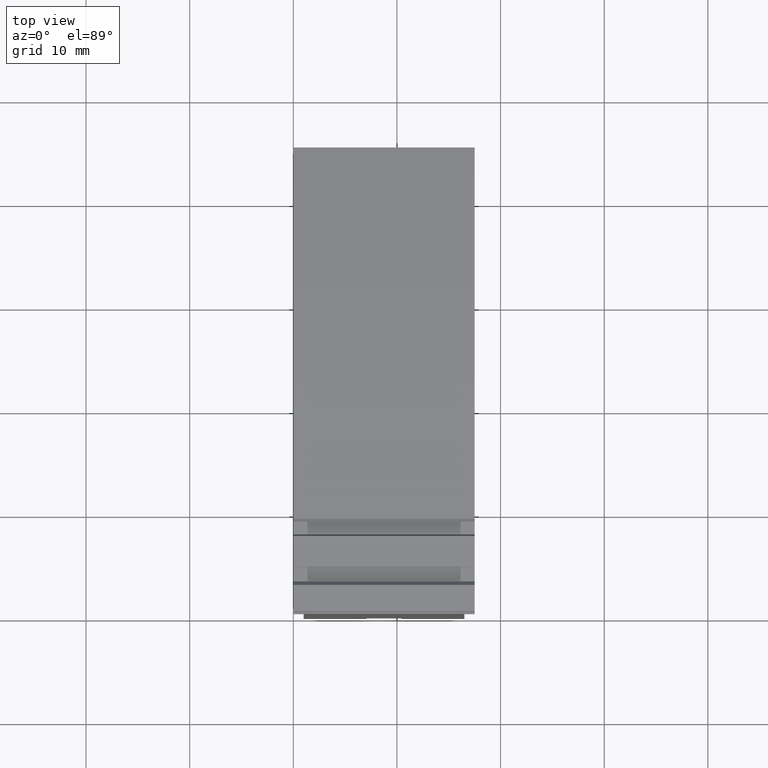
[diagram: clean part render]
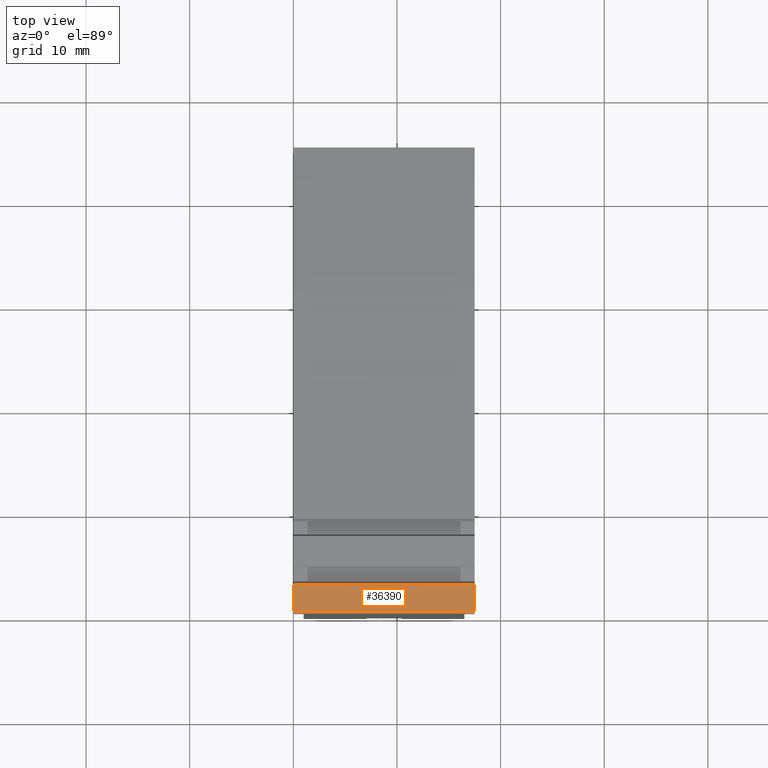
[diagram: same view with one face highlighted and labeled with its STEP entity id]
A machine part, top view. The second image highlights one B-rep face of the part: STEP entity #36390.
In plain terms, the highlighted cylindrical surface (partial cylindrical patch) has radius 200 mm, axis along (-1, 0, 0).
Its self-contained STEP definition (entity closure, byte-faithful):
#1380=CARTESIAN_POINT('',(89.1627879389476,69.0716268524715,
-65.5500000000926));
#1390=DIRECTION('',(1.22464679914735E-16,0.,-1.));
#1400=VECTOR('',#1390,1.);
#1410=LINE('',#1380,#1400);
#1420=CARTESIAN_POINT('',(89.1627879389475,69.0716268524716,
-48.0500000000926));
#1430=VERTEX_POINT('',#1420);
#1440=CARTESIAN_POINT('',(89.1627879389475,69.0716268524715,
-65.5500000000926));
#1450=VERTEX_POINT('',#1440);
#1460=EDGE_CURVE('',#1430,#1450,#1410,.T.);
#1760=CARTESIAN_POINT('',(69.3413513139148,-129.94372594756,
-48.0500000000926));
#1770=DIRECTION('',(-1.22464679914735E-16,0.,1.));
#1780=DIRECTION('',(1.,0.,1.22464679914735E-16));
#1790=AXIS2_PLACEMENT_3D('',#1760,#1770,#1780);
#1800=CIRCLE('',#1790,200.000000000003);
#1810=CARTESIAN_POINT('',(91.7413513139151,68.7979153861102,
-48.0500000000926));
#1820=VERTEX_POINT('',#1810);
#1830=EDGE_CURVE('',#1820,#1430,#1800,.T.);
#35950=CARTESIAN_POINT('',(91.7413513139151,68.7979153861102,
-65.5500000000926));
#35960=VERTEX_POINT('',#35950);
#36060=CARTESIAN_POINT('',(91.7413513139151,68.7979153861102,
-65.5500000000926));
#36070=DIRECTION('',(-1.22464679914735E-16,0.,1.));
#36080=VECTOR('',#36070,1.);
#36090=LINE('',#36060,#36080);
#36100=EDGE_CURVE('',#35960,#1820,#36090,.T.);
#36220=CARTESIAN_POINT('',(69.3413513139148,-129.94372594756,
-65.5500000000926));
#36230=DIRECTION('',(-1.22464679914735E-16,0.,1.));
#36240=DIRECTION('',(1.,0.,1.22464679914735E-16));
#36250=AXIS2_PLACEMENT_3D('',#36220,#36230,#36240);
#36260=CYLINDRICAL_SURFACE('',#36250,200.000000000003);
#36270=CARTESIAN_POINT('',(69.3413513139148,-129.94372594756,
-65.5500000000926));
#36280=DIRECTION('',(-1.22464679914735E-16,0.,1.));
#36290=DIRECTION('',(1.,0.,1.22464679914735E-16));
#36300=AXIS2_PLACEMENT_3D('',#36270,#36280,#36290);
#36310=CIRCLE('',#36300,200.000000000003);
#36320=EDGE_CURVE('',#35960,#1450,#36310,.T.);
#36330=ORIENTED_EDGE('',*,*,#36320,.T.);
#36340=ORIENTED_EDGE('',*,*,#36100,.F.);
#36350=ORIENTED_EDGE('',*,*,#1830,.F.);
#36360=ORIENTED_EDGE('',*,*,#1460,.F.);
#36370=EDGE_LOOP('',(#36360,#36350,#36340,#36330));
#36380=FACE_OUTER_BOUND('',#36370,.T.);
#36390=ADVANCED_FACE('',(#36380),#36260,.T.);